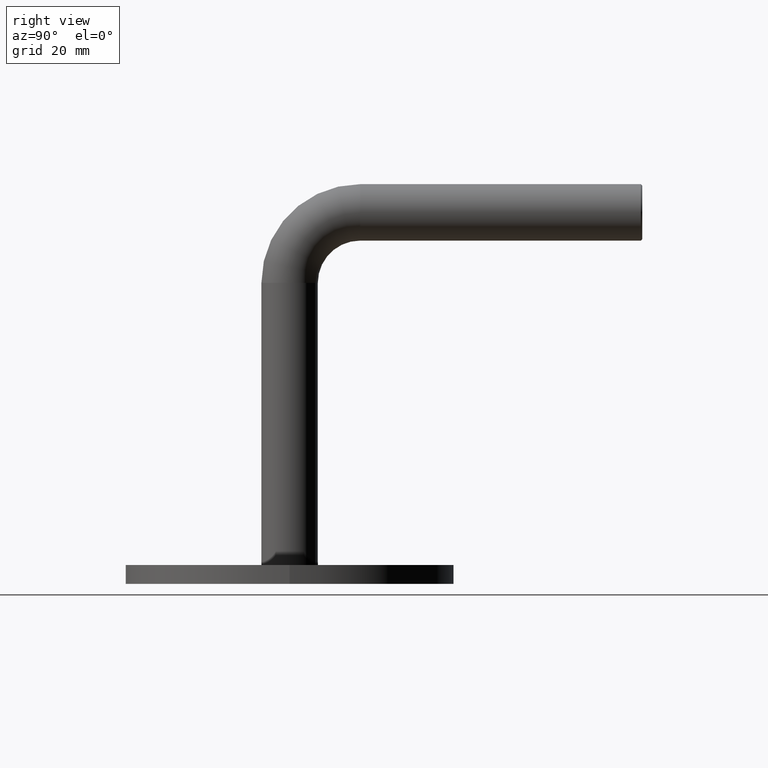
[diagram: clean part render]
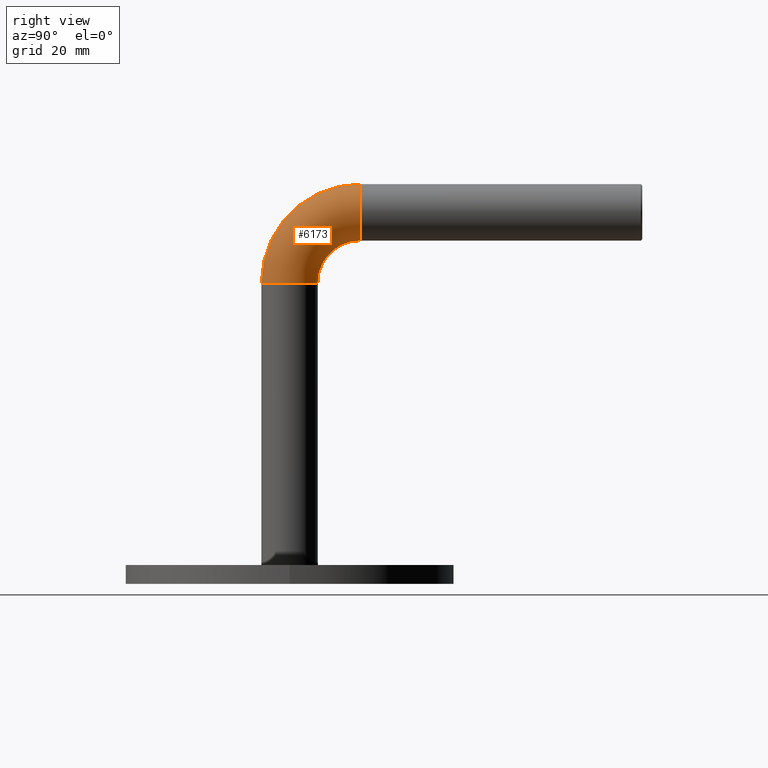
[diagram: same view with one face highlighted and labeled with its STEP entity id]
A machine part, right view. The second image highlights one B-rep face of the part: STEP entity #6173.
In plain terms, the highlighted toroidal blend (fillet) surface has major radius 15 mm and minor (blend) radius 6 mm.
Its self-contained STEP definition (entity closure, byte-faithful):
#288 = CARTESIAN_POINT ( 'NONE',  ( 0.000000000000000000, 14.99999999999999289, 60.00000000000000000 ) ) ;
#413 = DIRECTION ( 'NONE',  ( 1.000000000000000000, 0.000000000000000000, 0.000000000000000000 ) ) ;
#560 = TOROIDAL_SURFACE ( 'NONE', #4809, 15.00000000000000000, 6.000000000000000888 ) ;
#668 = CARTESIAN_POINT ( 'NONE',  ( 7.347880794884124666E-16, -6.000000000000008882, 60.00000000000000000 ) ) ;
#915 = EDGE_CURVE ( 'NONE', #13087, #7030, #5272, .T. ) ;
#1656 = DIRECTION ( 'NONE',  ( 0.000000000000000000, 1.000000000000000000, 6.123233995736766036E-17 ) ) ;
#1726 = EDGE_CURVE ( 'NONE', #9110, #4084, #9820, .T. ) ;
#2303 = AXIS2_PLACEMENT_3D ( 'NONE', #288, #15223, #7778 ) ;
#2800 = CARTESIAN_POINT ( 'NONE',  ( 0.000000000000000000, 14.99999999999999289, 75.00000000000000000 ) ) ;
#3202 = ORIENTED_EDGE ( 'NONE', *, *, #7733, .F. ) ;
#4084 = VERTEX_POINT ( 'NONE', #10694 ) ;
#4471 = CARTESIAN_POINT ( 'NONE',  ( 7.347880794884120722E-16, 14.99999999999999289, 60.00000000000000000 ) ) ;
#4809 = AXIS2_PLACEMENT_3D ( 'NONE', #12455, #13570, #6340 ) ;
#5272 = CIRCLE ( 'NONE', #6583, 6.000000000000000888 ) ;
#5839 = CIRCLE ( 'NONE', #2303, 21.00000000000000355 ) ;
#6173 = ADVANCED_FACE ( 'NONE', ( #13948 ), #560, .T. ) ;
#6340 = DIRECTION ( 'NONE',  ( 0.000000000000000000, 0.000000000000000000, 1.000000000000000000 ) ) ;
#6583 = AXIS2_PLACEMENT_3D ( 'NONE', #2800, #1656, #7886 ) ;
#6792 = DIRECTION ( 'NONE',  ( -1.000000000000000000, -0.000000000000000000, 0.000000000000000000 ) ) ;
#6843 = DIRECTION ( 'NONE',  ( 0.000000000000000000, 0.000000000000000000, 1.000000000000000000 ) ) ;
#6951 = ORIENTED_EDGE ( 'NONE', *, *, #8728, .T. ) ;
#7030 = VERTEX_POINT ( 'NONE', #12464 ) ;
#7733 = EDGE_CURVE ( 'NONE', #9110, #13087, #5839, .T. ) ;
#7778 = DIRECTION ( 'NONE',  ( 0.000000000000000000, 0.000000000000000000, 1.000000000000000000 ) ) ;
#7886 = DIRECTION ( 'NONE',  ( 1.000000000000000000, 0.000000000000000000, 0.000000000000000000 ) ) ;
#8728 = EDGE_CURVE ( 'NONE', #4084, #7030, #13222, .T. ) ;
#9110 = VERTEX_POINT ( 'NONE', #668 ) ;
#9820 = CIRCLE ( 'NONE', #16052, 6.000000000000000888 ) ;
#10694 = CARTESIAN_POINT ( 'NONE',  ( 0.000000000000000000, 5.999999999999993783, 60.00000000000000000 ) ) ;
#11491 = ORIENTED_EDGE ( 'NONE', *, *, #915, .F. ) ;
#11557 = CARTESIAN_POINT ( 'NONE',  ( 0.000000000000000000, 14.99999999999999289, 81.00000000000000000 ) ) ;
#11636 = CARTESIAN_POINT ( 'NONE',  ( 0.000000000000000000, -6.938893903907228378E-15, 60.00000000000000000 ) ) ;
#11682 = DIRECTION ( 'NONE',  ( 0.000000000000000000, 0.000000000000000000, 1.000000000000000000 ) ) ;
#12455 = CARTESIAN_POINT ( 'NONE',  ( 0.000000000000000000, 14.99999999999999289, 60.00000000000000000 ) ) ;
#12464 = CARTESIAN_POINT ( 'NONE',  ( 7.347880794884113820E-16, 14.99999999999999289, 68.99999999999998579 ) ) ;
#12632 = AXIS2_PLACEMENT_3D ( 'NONE', #4471, #6792, #6843 ) ;
#12857 = EDGE_LOOP ( 'NONE', ( #3202, #14803, #6951, #11491 ) ) ;
#13087 = VERTEX_POINT ( 'NONE', #11557 ) ;
#13222 = CIRCLE ( 'NONE', #12632, 8.999999999999994671 ) ;
#13570 = DIRECTION ( 'NONE',  ( -1.000000000000000000, -0.000000000000000000, 0.000000000000000000 ) ) ;
#13948 = FACE_OUTER_BOUND ( 'NONE', #12857, .T. ) ;
#14803 = ORIENTED_EDGE ( 'NONE', *, *, #1726, .T. ) ;
#15223 = DIRECTION ( 'NONE',  ( -1.000000000000000000, -0.000000000000000000, 0.000000000000000000 ) ) ;
#16052 = AXIS2_PLACEMENT_3D ( 'NONE', #11636, #11682, #413 ) ;